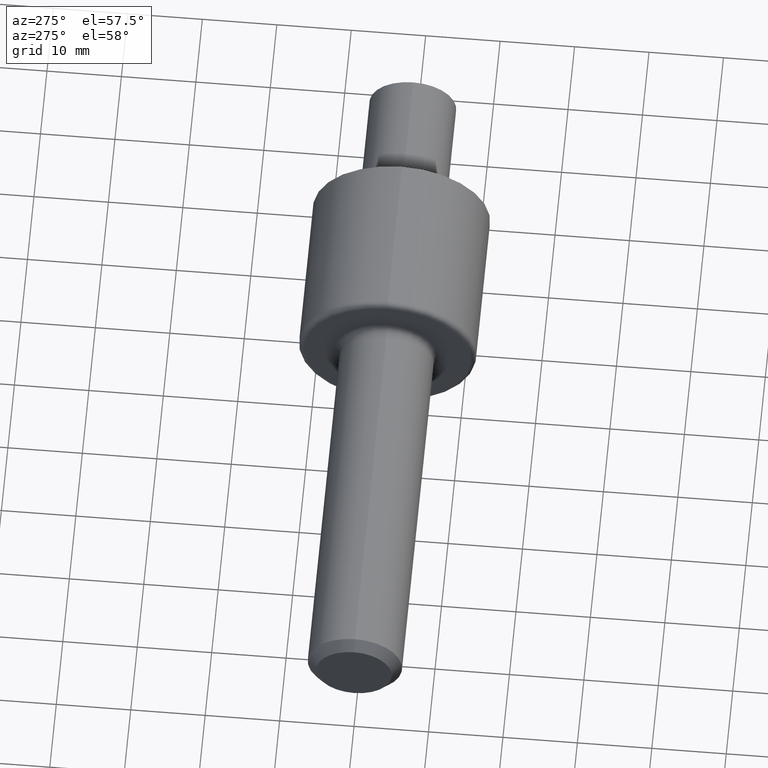
[diagram: clean part render]
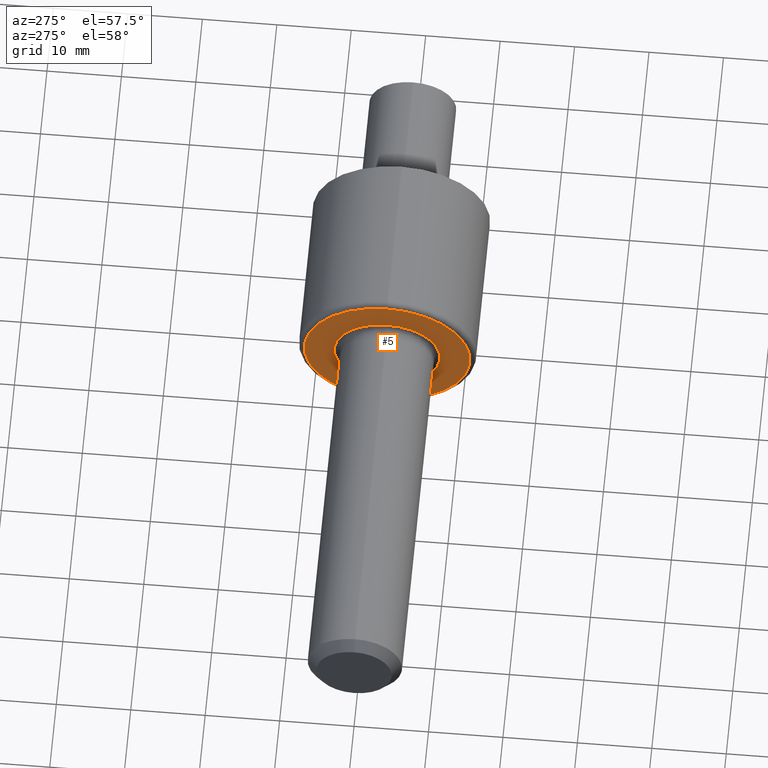
[diagram: same view with one face highlighted and labeled with its STEP entity id]
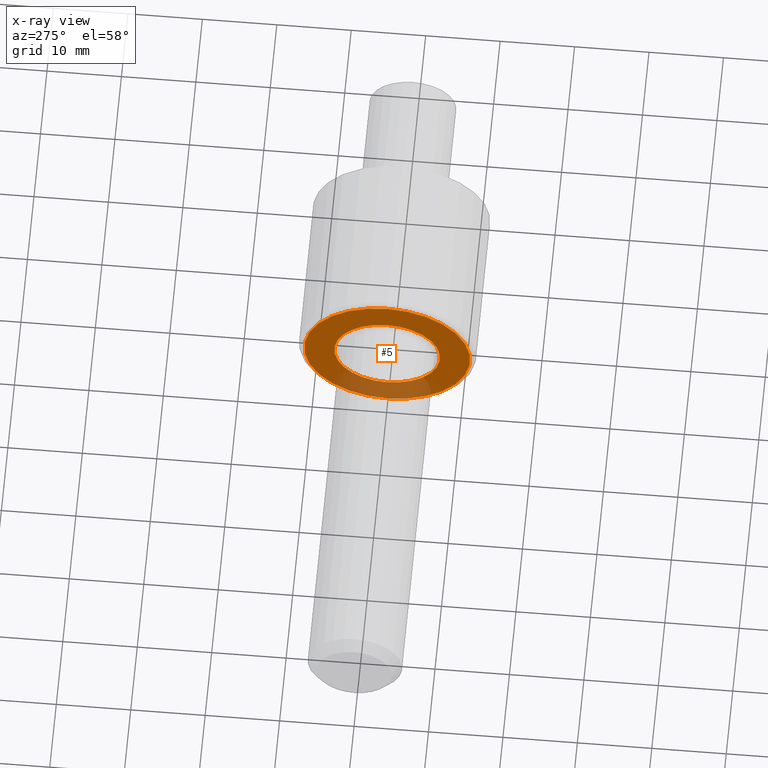
[diagram: x-ray of the same camera — body ghosted, the highlighted face saturated]
A machine part, auxiliary view. The second image highlights one B-rep face of the part: STEP entity #5.
The next image is the same camera in x-ray: the body ghosted, the highlighted face saturated — about 23% of this face is hidden behind the body in this view.
In plain terms, the highlighted planar face has unit normal (1, 0, 0).
Its self-contained STEP definition (entity closure, byte-faithful):
#5 = ADVANCED_FACE ( 'NONE', ( #369, #396 ), #73, .F. ) ;
#24 = AXIS2_PLACEMENT_3D ( 'NONE', #59, #150, #397 ) ;
#36 = AXIS2_PLACEMENT_3D ( 'NONE', #173, #421, #559 ) ;
#51 = VERTEX_POINT ( 'NONE', #255 ) ;
#52 = CARTESIAN_POINT ( 'NONE',  ( 2.000000000000000000, 3.427174067413867695E-17, -0.2798499999999999877 ) ) ;
#59 = CARTESIAN_POINT ( 'NONE',  ( 2.000000000000000000, 0.0000000000000000000, 0.0000000000000000000 ) ) ;
#73 = PLANE ( 'NONE',  #36 ) ;
#84 = DIRECTION ( 'NONE',  ( -1.000000000000000000, -0.0000000000000000000, -0.0000000000000000000 ) ) ;
#90 = CARTESIAN_POINT ( 'NONE',  ( 2.000000000000000000, 0.0000000000000000000, 0.0000000000000000000 ) ) ;
#102 = EDGE_CURVE ( 'NONE', #527, #248, #210, .T. ) ;
#143 = DIRECTION ( 'NONE',  ( 0.0000000000000000000, 0.0000000000000000000, 1.000000000000000000 ) ) ;
#150 = DIRECTION ( 'NONE',  ( -1.000000000000000000, -0.0000000000000000000, -0.0000000000000000000 ) ) ;
#170 = CIRCLE ( 'NONE', #283, 0.2798499999999999877 ) ;
#173 = CARTESIAN_POINT ( 'NONE',  ( 2.000000000000000000, 0.4389999999999999458, 0.0000000000000000000 ) ) ;
#210 = CIRCLE ( 'NONE', #419, 0.2798499999999999877 ) ;
#231 = ORIENTED_EDGE ( 'NONE', *, *, #438, .T. ) ;
#248 = VERTEX_POINT ( 'NONE', #52 ) ;
#255 = CARTESIAN_POINT ( 'NONE',  ( 2.000000000000000000, 0.0000000000000000000, 0.4389999999999999458 ) ) ;
#264 = EDGE_CURVE ( 'NONE', #51, #303, #457, .T. ) ;
#283 = AXIS2_PLACEMENT_3D ( 'NONE', #554, #550, #143 ) ;
#303 = VERTEX_POINT ( 'NONE', #345 ) ;
#304 = ORIENTED_EDGE ( 'NONE', *, *, #332, .F. ) ;
#316 = AXIS2_PLACEMENT_3D ( 'NONE', #90, #84, #384 ) ;
#332 = EDGE_CURVE ( 'NONE', #248, #527, #170, .T. ) ;
#344 = DIRECTION ( 'NONE',  ( -1.000000000000000000, -0.0000000000000000000, -0.0000000000000000000 ) ) ;
#345 = CARTESIAN_POINT ( 'NONE',  ( 2.000000000000000000, 5.559896468128982343E-17, -0.4389999999999999458 ) ) ;
#369 = FACE_BOUND ( 'NONE', #447, .T. ) ;
#370 = CARTESIAN_POINT ( 'NONE',  ( 2.000000000000000000, 0.0000000000000000000, 0.2798499999999999877 ) ) ;
#378 = CIRCLE ( 'NONE', #24, 0.4389999999999999458 ) ;
#384 = DIRECTION ( 'NONE',  ( 0.0000000000000000000, 0.0000000000000000000, 1.000000000000000000 ) ) ;
#396 = FACE_OUTER_BOUND ( 'NONE', #411, .T. ) ;
#397 = DIRECTION ( 'NONE',  ( 0.0000000000000000000, 0.0000000000000000000, 1.000000000000000000 ) ) ;
#411 = EDGE_LOOP ( 'NONE', ( #501, #231 ) ) ;
#419 = AXIS2_PLACEMENT_3D ( 'NONE', #540, #344, #526 ) ;
#421 = DIRECTION ( 'NONE',  ( 1.000000000000000000, 0.0000000000000000000, 0.0000000000000000000 ) ) ;
#438 = EDGE_CURVE ( 'NONE', #303, #51, #378, .T. ) ;
#447 = EDGE_LOOP ( 'NONE', ( #542, #304 ) ) ;
#457 = CIRCLE ( 'NONE', #316, 0.4389999999999999458 ) ;
#501 = ORIENTED_EDGE ( 'NONE', *, *, #264, .T. ) ;
#526 = DIRECTION ( 'NONE',  ( 0.0000000000000000000, 0.0000000000000000000, 1.000000000000000000 ) ) ;
#527 = VERTEX_POINT ( 'NONE', #370 ) ;
#540 = CARTESIAN_POINT ( 'NONE',  ( 2.000000000000000000, 0.0000000000000000000, 0.0000000000000000000 ) ) ;
#542 = ORIENTED_EDGE ( 'NONE', *, *, #102, .F. ) ;
#550 = DIRECTION ( 'NONE',  ( -1.000000000000000000, -0.0000000000000000000, -0.0000000000000000000 ) ) ;
#554 = CARTESIAN_POINT ( 'NONE',  ( 2.000000000000000000, 0.0000000000000000000, 0.0000000000000000000 ) ) ;
#559 = DIRECTION ( 'NONE',  ( 0.0000000000000000000, 0.0000000000000000000, -1.000000000000000000 ) ) ;